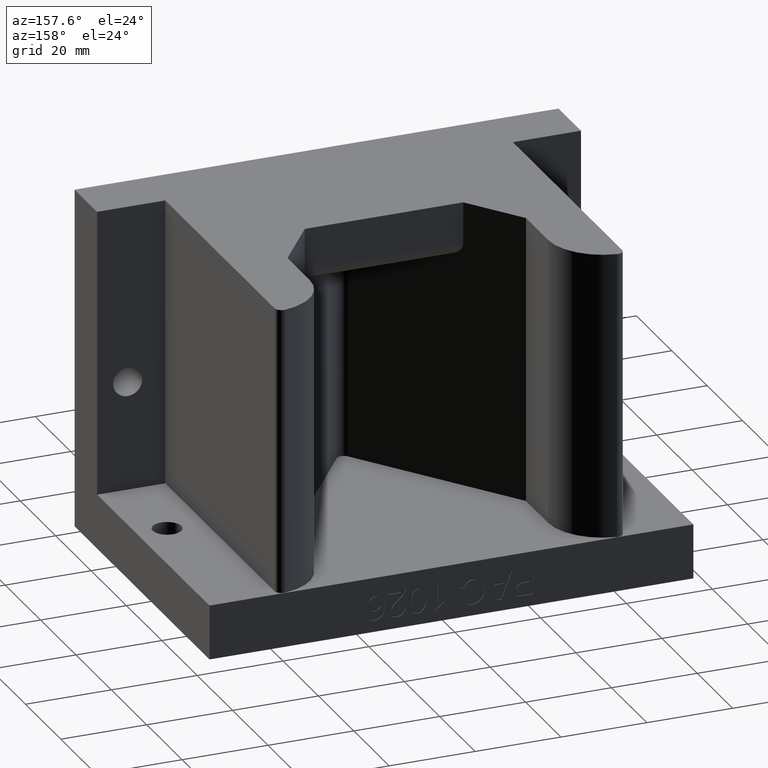
[diagram: clean part render]
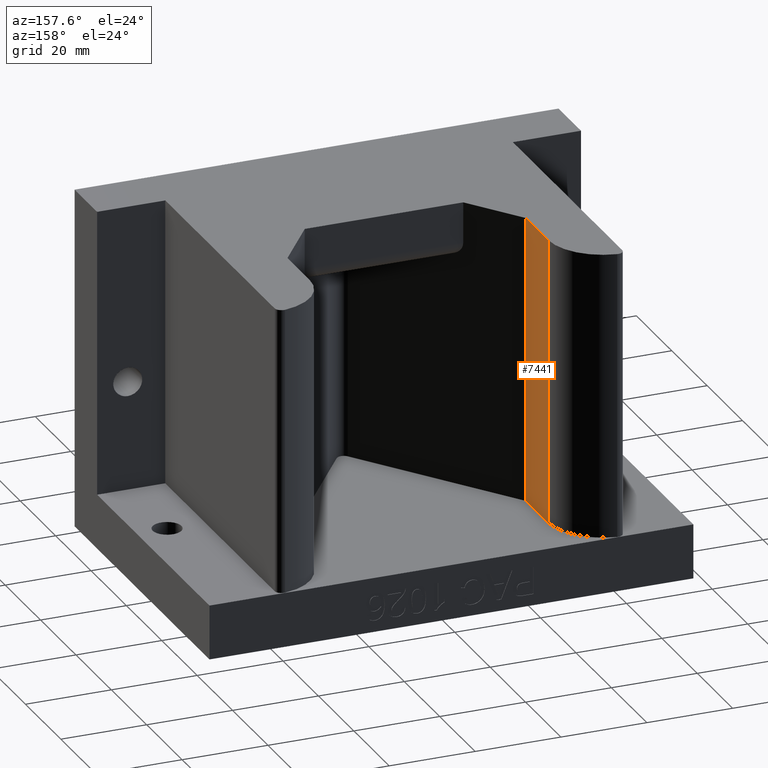
[diagram: same view with one face highlighted and labeled with its STEP entity id]
A machine part, auxiliary view. The second image highlights one B-rep face of the part: STEP entity #7441.
In plain terms, the highlighted planar face has unit normal (-1, -0, 0).
Its self-contained STEP definition (entity closure, byte-faithful):
#446 = DIRECTION ( 'NONE',  ( 1.373364508773192600E-016, -1.000000000000000000, -0.0000000000000000000 ) ) ;
#447 = CARTESIAN_POINT ( 'NONE',  ( -1.093749999999991600, 0.5054177255153523600, 0.5000000000000001100 ) ) ;
#459 = DIRECTION ( 'NONE',  ( -0.0000000000000000000, -0.0000000000000000000, 1.000000000000000000 ) ) ;
#464 = CARTESIAN_POINT ( 'NONE',  ( -1.093749999999991600, 0.5054177255153523600, 0.5000000000000001100 ) ) ;
#1384 = ORIENTED_EDGE ( 'NONE', *, *, #5825, .T. ) ;
#1395 = ORIENTED_EDGE ( 'NONE', *, *, #3113, .F. ) ;
#1398 = ORIENTED_EDGE ( 'NONE', *, *, #3165, .T. ) ;
#1402 = ORIENTED_EDGE ( 'NONE', *, *, #3108, .F. ) ;
#1426 = LINE ( 'NONE', #464, #1435 ) ;
#1435 = VECTOR ( 'NONE', #459, 39.37007874015748100 ) ;
#1443 = LINE ( 'NONE', #447, #1444 ) ;
#1444 = VECTOR ( 'NONE', #446, 39.37007874015748100 ) ;
#1496 = LINE ( 'NONE', #4709, #1507 ) ;
#1507 = VECTOR ( 'NONE', #4707, 39.37007874015748100 ) ;
#1925 = CARTESIAN_POINT ( 'NONE',  ( -1.093749999999991600, 1.000000000000000200, 0.5000000000000001100 ) ) ;
#1927 = DIRECTION ( 'NONE',  ( 0.0000000000000000000, 0.0000000000000000000, 1.000000000000000000 ) ) ;
#3108 = EDGE_CURVE ( 'NONE', #8557, #8579, #1426, .T. ) ;
#3113 = EDGE_CURVE ( 'NONE', #8566, #8557, #1443, .T. ) ;
#3165 = EDGE_CURVE ( 'NONE', #8548, #8579, #1496, .T. ) ;
#3936 = CARTESIAN_POINT ( 'NONE',  ( -1.093749999999991600, 1.000000000000000200, 3.125000000000000000 ) ) ;
#3945 = CARTESIAN_POINT ( 'NONE',  ( -1.093749999999991600, 0.5054177255153523600, 0.5000000000000001100 ) ) ;
#3954 = CARTESIAN_POINT ( 'NONE',  ( -1.093749999999991600, 1.000000000000000200, 0.5000000000000001100 ) ) ;
#3967 = CARTESIAN_POINT ( 'NONE',  ( -1.093749999999991600, 0.5054177255153523600, 3.125000000000000000 ) ) ;
#4055 = AXIS2_PLACEMENT_3D ( 'NONE', #6252, #6534, #6533 ) ;
#4707 = DIRECTION ( 'NONE',  ( 0.0000000000000000000, -1.000000000000000000, 0.0000000000000000000 ) ) ;
#4709 = CARTESIAN_POINT ( 'NONE',  ( -1.093749999999991600, 1.000000000000000200, 3.125000000000000000 ) ) ;
#5414 = EDGE_LOOP ( 'NONE', ( #1395, #1384, #1398, #1402 ) ) ;
#5825 = EDGE_CURVE ( 'NONE', #8566, #8548, #6093, .T. ) ;
#6093 = LINE ( 'NONE', #1925, #6096 ) ;
#6096 = VECTOR ( 'NONE', #1927, 39.37007874015748100 ) ;
#6252 = CARTESIAN_POINT ( 'NONE',  ( -1.093749999999991600, 0.5054177255153523600, 0.5000000000000001100 ) ) ;
#6533 = DIRECTION ( 'NONE',  ( 1.373364508773192800E-016, -1.000000000000000000, 0.0000000000000000000 ) ) ;
#6534 = DIRECTION ( 'NONE',  ( -1.000000000000000000, -1.373364508773192800E-016, 0.0000000000000000000 ) ) ;
#6539 = PLANE ( 'NONE',  #4055 ) ;
#7441 = ADVANCED_FACE ( 'NONE', ( #7555 ), #6539, .F. ) ;
#7555 = FACE_OUTER_BOUND ( 'NONE', #5414, .T. ) ;
#8548 = VERTEX_POINT ( 'NONE', #3936 ) ;
#8557 = VERTEX_POINT ( 'NONE', #3945 ) ;
#8566 = VERTEX_POINT ( 'NONE', #3954 ) ;
#8579 = VERTEX_POINT ( 'NONE', #3967 ) ;